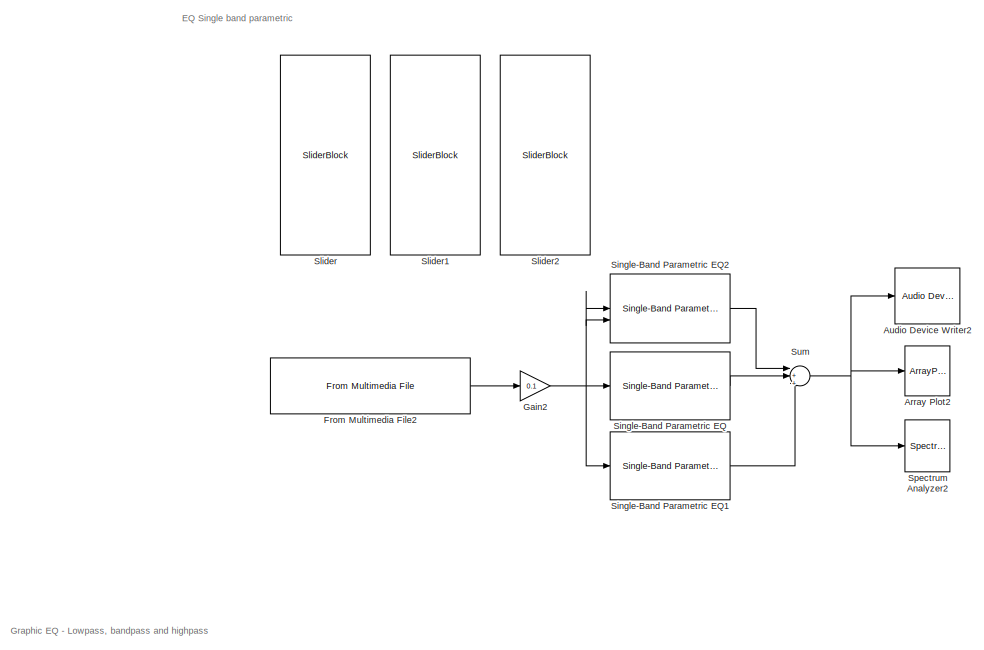
[diagram: root canvas - part 1/5, top right region]
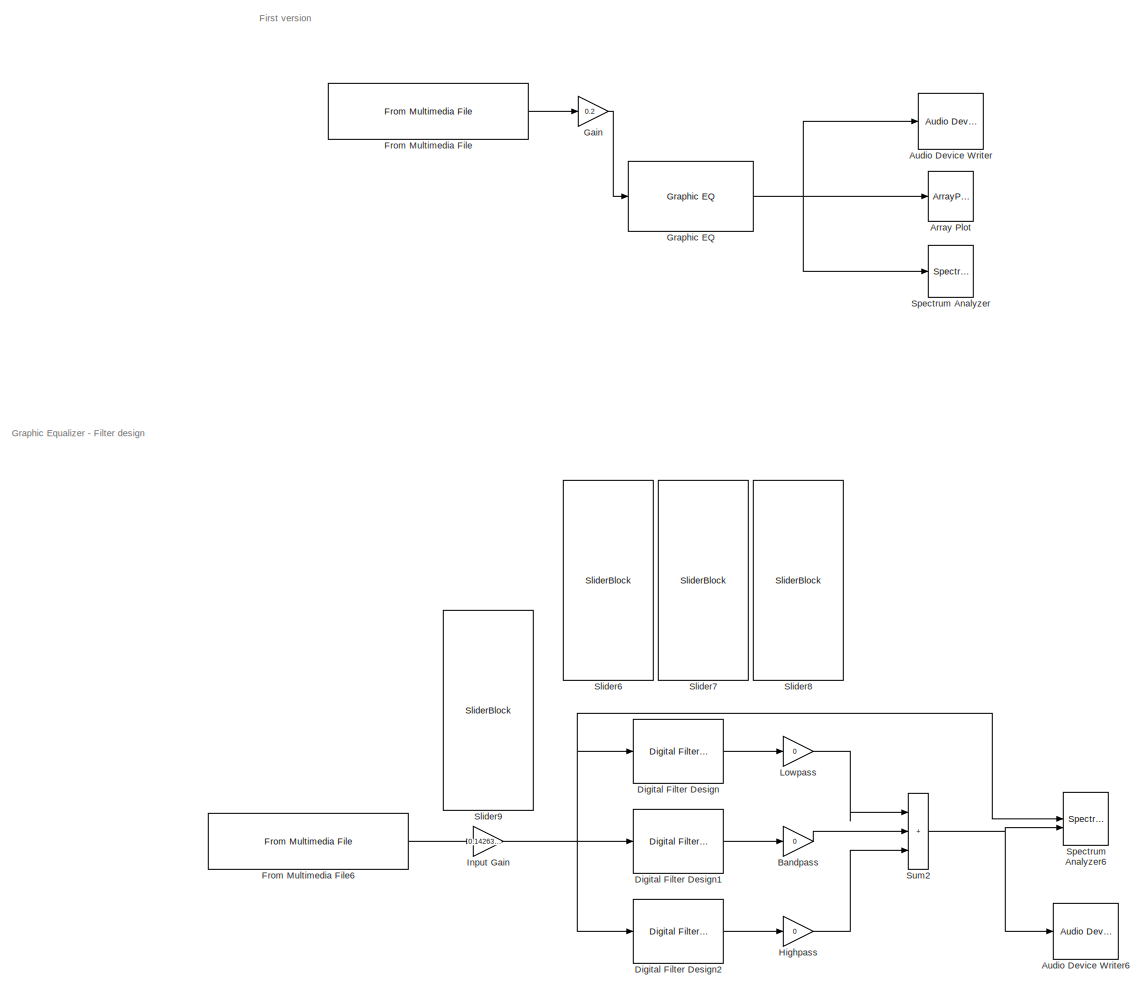
[diagram: root canvas - part 2/5, central region]
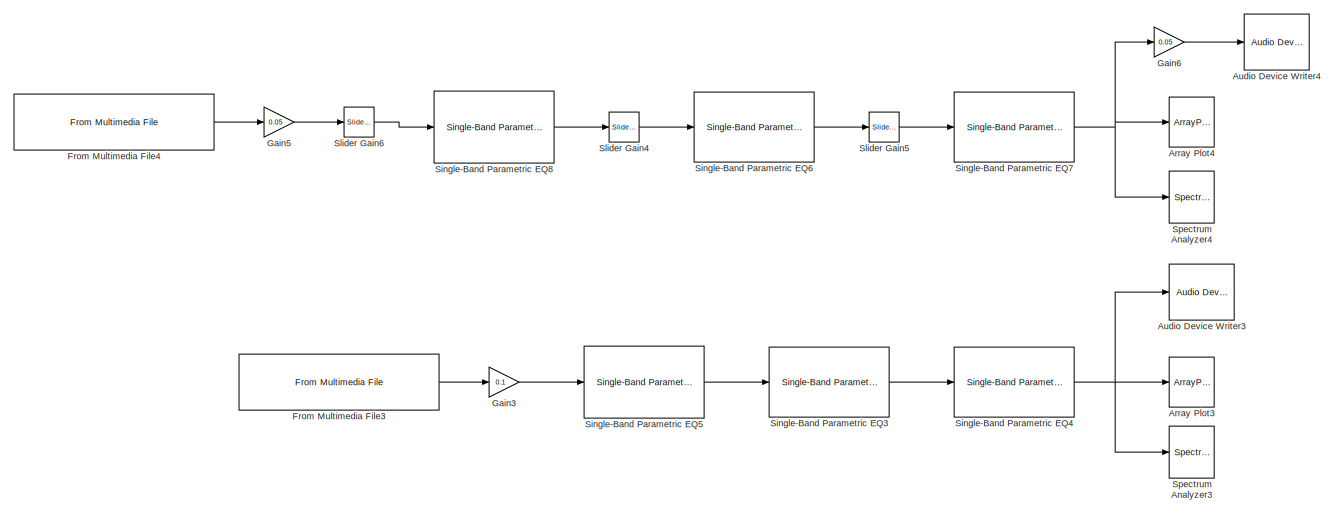
[diagram: root canvas - part 3/5, middle left region]
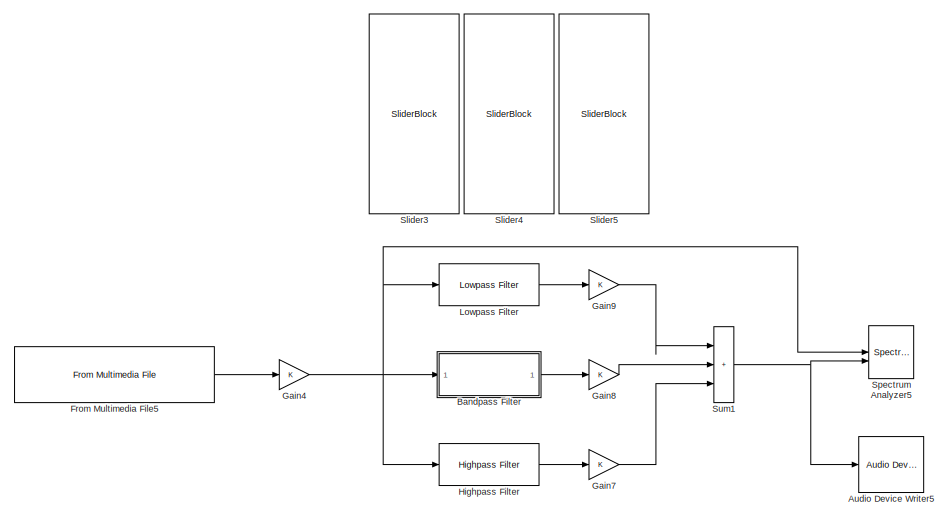
[diagram: root canvas - part 4/5, middle right region]
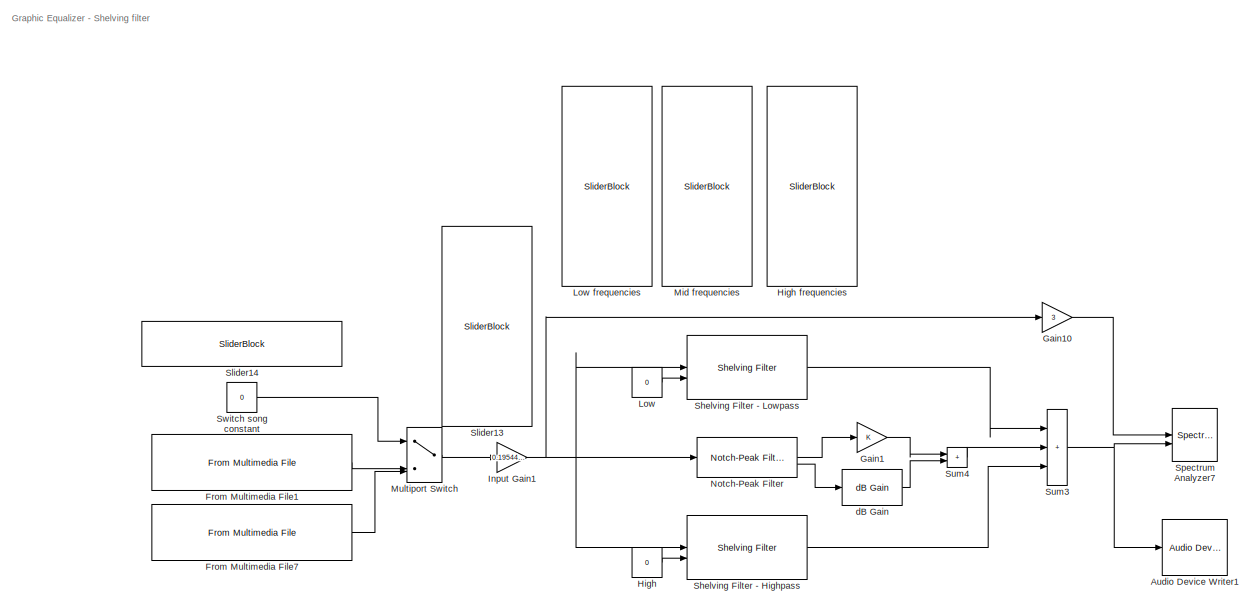
[diagram: root canvas - part 5/5, bottom right region]
MODEL slx_340e7afe3db8
KIND model
CONFIG AbsTol = auto
CONFIG EnableMultiTasking = off
CONFIG FixedStep = auto
CONFIG MaxStep = auto
CONFIG MinStep = auto
CONFIG RelTol = 1e-3
CONFIG SampleTimeConstraint = Unconstrained
CONFIG SolverName = FixedStepDiscrete
CONFIG StartTime = 0.0
CONFIG StopTime = inf
BLOCK [ArrayPlot] Array Plot
  Commented = on
  GraphicalSettings = {"Style":{"BackgroundColor":[0.1568627450980392,0.1568627450980392,0.1568627450980392],"AxesColor":[0,0,0],"LabelsColor":[0.6862745098039216,0.6862745098039216,0.6862745098039216],"LineStyle":["-","-"],"LineColor":[[1,1,0.06666666666666667],[0.07450980392156863,0.6235294117647059,1]],"LineWidth":[1.5,1.5],"Marker":["o","o"],"FontSize":"small"},"Cursors":{"Enabled":false,"XLocation":[2,8],"YLocatio...<+395ch>  <repeated x4 — deduplicated; at blocks: Array Plot, Array Plot2, Array Plot3, Array Plot4>
  ScopeFrameLocation = window
  ShowLegend = on
  WasSavedAsWebScope = on
  WindowPosition = [1760.000000,42.000000,800.000000,500.000000,]
  YLimits = [-0.1327,0.1293]
BLOCK [ArrayPlot] Array Plot2
  Commented = on
  ScopeFrameLocation = window
  ShowLegend = on
  WasSavedAsWebScope = on
  WindowPosition = [1657.000000,112.000000,800.000000,500.000000,]
  YLimits = [-0.3932,0.3437]
BLOCK [ArrayPlot] Array Plot3
  Commented = on
  ScopeFrameLocation = window
  ShowLegend = on
  WasSavedAsWebScope = on
  WindowPosition = [1657.000000,112.000000,800.000000,500.000000,]
  YLimits = [-0.0682,0.0646]
BLOCK [ArrayPlot] Array Plot4
  Commented = on
  ScopeFrameLocation = window
  ShowLegend = on
  WasSavedAsWebScope = on
  WindowPosition = [1657.000000,112.000000,800.000000,500.000000,]
  YLimits = [-1.0204,0.9782]
BLOCK [Reference] Audio Device Writer  REF=dspsnks4/Audio Device
Writer
  Commented = on
  SourceBlock = dspsnks4/Audio Device\nWriter
  SourceType = Audio Device Writer
BLOCK [Reference] Audio Device Writer1  REF=dspsnks4/Audio Device
Writer
  SourceBlock = dspsnks4/Audio Device\nWriter
  SourceType = Audio Device Writer
BLOCK [Reference] Audio Device Writer2  REF=dspsnks4/Audio Device
Writer
  Commented = on
  SourceBlock = dspsnks4/Audio Device\nWriter
  SourceType = Audio Device Writer
BLOCK [Reference] Audio Device Writer3  REF=dspsnks4/Audio Device
Writer
  Commented = on
  SourceBlock = dspsnks4/Audio Device\nWriter
  SourceType = Audio Device Writer
BLOCK [Reference] Audio Device Writer4  REF=dspsnks4/Audio Device
Writer
  Commented = on
  SourceBlock = dspsnks4/Audio Device\nWriter
  SourceType = Audio Device Writer
BLOCK [Reference] Audio Device Writer5  REF=dspsnks4/Audio Device
Writer
  Commented = on
  SourceBlock = dspsnks4/Audio Device\nWriter
  SourceType = Audio Device Writer
BLOCK [Reference] Audio Device Writer6  REF=dspsnks4/Audio Device
Writer
  Commented = on
  SourceBlock = dspsnks4/Audio Device\nWriter
  SourceType = Audio Device Writer
BLOCK [Gain] Bandpass
  Commented = on
  Gain = 0
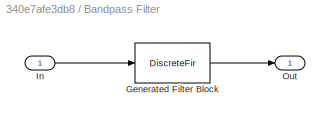
BLOCK [SubSystem] Bandpass Filter
  Commented = on
  CopyFcn = fdesignblkfcn(gcbh, {'CopyFcn'});
  DialogController = fdesignblkfcn
  InitFcn = fdesignblkfcn(gcbh, {'InitFcn'});
  UserDataPersistent = on
BLOCK [DiscreteFir] Bandpass Filter/Generated Filter Block
  Coefficients = [-0.191129939643672114 -0.04182100165159746 -0.0324519768568180614 -0.0150380352860095112 0.00653823963646311609 0.026896052555044115 0.040494078194709085 0.0431305328870113802 0.0331784454415686922 0.0121749667915446395 -0.0152466702751226906 -0.0424978780273151599 -0.0623837933939399847 -0.0692732368320401609 -0.0604779206578360193 -0.0371922014776995824 -0.00458597343800470035 0.029430551994628...<+1847ch>
  InputPortMap = u0
  InputProcessing = Columns as channels (frame based)
  OutputPortMap = o0
  Tag = BlockMethodSubSystem
BLOCK [Inport] Bandpass Filter/In
BLOCK [Outport] Bandpass Filter/Out
  VectorParamsAs1DForOutWhenUnconnected = off
BLOCK [Reference] Digital Filter Design  REF=dsparch4/Digital
Filter Design
  Commented = on
  SourceBlock = dsparch4/Digital\nFilter Design
  SourceType = Digital Filter Design
  UserDataPersistent = on
BLOCK [Reference] Digital Filter Design1  REF=dsparch4/Digital
Filter Design
  Commented = on
  SourceBlock = dsparch4/Digital\nFilter Design
  SourceType = Digital Filter Design
  UserDataPersistent = on
BLOCK [Reference] Digital Filter Design2  REF=dsparch4/Digital
Filter Design
  Commented = on
  SourceBlock = dsparch4/Digital\nFilter Design
  SourceType = Digital Filter Design
  UserDataPersistent = on
BLOCK [Reference] From Multimedia File  REF=dspvision/From Multimedia File
  Commented = on
  SourceBlock = dspvision/From Multimedia File
  SourceType = From Multimedia File
BLOCK [Reference] From Multimedia File1  REF=dspvision/From Multimedia File
  SourceBlock = dspvision/From Multimedia File
  SourceType = From Multimedia File
BLOCK [Reference] From Multimedia File2  REF=dspvision/From Multimedia File
  Commented = on
  SourceBlock = dspvision/From Multimedia File
  SourceType = From Multimedia File
BLOCK [Reference] From Multimedia File3  REF=dspvision/From Multimedia File
  Commented = on
  SourceBlock = dspvision/From Multimedia File
  SourceType = From Multimedia File
BLOCK [Reference] From Multimedia File4  REF=dspvision/From Multimedia File
  Commented = on
  SourceBlock = dspvision/From Multimedia File
  SourceType = From Multimedia File
BLOCK [Reference] From Multimedia File5  REF=dspvision/From Multimedia File
  Commented = on
  SourceBlock = dspvision/From Multimedia File
  SourceType = From Multimedia File
BLOCK [Reference] From Multimedia File6  REF=dspvision/From Multimedia File
  Commented = on
  SourceBlock = dspvision/From Multimedia File
  SourceType = From Multimedia File
BLOCK [Reference] From Multimedia File7  REF=dspvision/From Multimedia File
  SourceBlock = dspvision/From Multimedia File
  SourceType = From Multimedia File
BLOCK [Gain] Gain
  Commented = on
  Gain = 0.2
BLOCK [Gain] Gain1
BLOCK [Gain] Gain10
  Gain = 3
BLOCK [Gain] Gain2
  Commented = on
  Gain = 0.1
BLOCK [Gain] Gain3
  Commented = on
  Gain = 0.1
BLOCK [Gain] Gain4
  Commented = on
BLOCK [Gain] Gain5
  Commented = on
  Gain = 0.05
BLOCK [Gain] Gain6
  Commented = on
  Gain = 0.05
BLOCK [Gain] Gain7
  Commented = on
BLOCK [Gain] Gain8
  Commented = on
BLOCK [Gain] Gain9
  Commented = on
BLOCK [Reference] Graphic EQ  REF=audiofilters/Graphic EQ
  Commented = on
  SourceBlock = audiofilters/Graphic EQ
  SourceType = audio.simulink.GraphicEQ
BLOCK [Constant] High
  Value = 0
BLOCK [SliderBlock] High frequencies
  ScaleMax = 30
  ScaleMin = -30
BLOCK [Gain] Highpass
  Commented = on
  Gain = 0
BLOCK [Reference] Highpass Filter  REF=dspfdesign/Highpass Filter
  Commented = on
  SourceBlock = dspfdesign/Highpass Filter
  SourceType = dsp.simulink.HighpassFilter
BLOCK [Gain] Input Gain
  Commented = on
  Gain = 0.1426371087518565
BLOCK [Gain] Input Gain1
  Gain = 0.1954452940205732
BLOCK [Constant] Low
  Value = 0
BLOCK [SliderBlock] Low frequencies
  ScaleMax = 30
  ScaleMin = -30
BLOCK [Gain] Lowpass
  Commented = on
  Gain = 0
BLOCK [Reference] Lowpass Filter  REF=dspfdesign/Lowpass Filter
  Commented = on
  SourceBlock = dspfdesign/Lowpass Filter
  SourceType = dsp.simulink.LowpassFilter
BLOCK [SliderBlock] Mid frequencies
  ScaleMax = 30
  ScaleMin = -30
BLOCK [MultiPortSwitch] Multiport Switch
  DataPortOrder = Zero-based contiguous
  InputSameDT = off
  SaturateOnIntegerOverflow = off
  zeroidx = on
BLOCK [Reference] Notch-Peak Filter  REF=dspfdesign/Notch-Peak Filter
  SourceBlock = dspfdesign/Notch-Peak Filter
  SourceType = dsp.simulink.NotchPeakFilter
BLOCK [Reference] Shelving Filter - Highpass  REF=audiofilters/Shelving Filter
  SourceBlock = audiofilters/Shelving Filter
  SourceType = audio.simulink.ShelvingFilter
BLOCK [Reference] Shelving Filter - Lowpass  REF=audiofilters/Shelving Filter
  SourceBlock = audiofilters/Shelving Filter
  SourceType = audio.simulink.ShelvingFilter
BLOCK [Reference] Single-Band Parametric EQ  REF=audiofilters/Single-Band Parametric EQ
  Commented = on
  SourceBlock = audiofilters/Single-Band Parametric EQ
  SourceType = audio.simulink.ParametricEQ
BLOCK [Reference] Single-Band Parametric EQ1  REF=audiofilters/Single-Band Parametric EQ
  Commented = on
  SourceBlock = audiofilters/Single-Band Parametric EQ
  SourceType = audio.simulink.ParametricEQ
BLOCK [Reference] Single-Band Parametric EQ2  REF=audiofilters/Single-Band Parametric EQ
  Commented = on
  SourceBlock = audiofilters/Single-Band Parametric EQ
  SourceType = audio.simulink.ParametricEQ
BLOCK [Reference] Single-Band Parametric EQ3  REF=audiofilters/Single-Band Parametric EQ
  Commented = on
  SourceBlock = audiofilters/Single-Band Parametric EQ
  SourceType = audio.simulink.ParametricEQ
BLOCK [Reference] Single-Band Parametric EQ4  REF=audiofilters/Single-Band Parametric EQ
  Commented = on
  SourceBlock = audiofilters/Single-Band Parametric EQ
  SourceType = audio.simulink.ParametricEQ
BLOCK [Reference] Single-Band Parametric EQ5  REF=audiofilters/Single-Band Parametric EQ
  Commented = on
  SourceBlock = audiofilters/Single-Band Parametric EQ
  SourceType = audio.simulink.ParametricEQ
BLOCK [Reference] Single-Band Parametric EQ6  REF=audiofilters/Single-Band Parametric EQ
  Commented = on
  SourceBlock = audiofilters/Single-Band Parametric EQ
  SourceType = audio.simulink.ParametricEQ
BLOCK [Reference] Single-Band Parametric EQ7  REF=audiofilters/Single-Band Parametric EQ
  Commented = on
  SourceBlock = audiofilters/Single-Band Parametric EQ
  SourceType = audio.simulink.ParametricEQ
BLOCK [Reference] Single-Band Parametric EQ8  REF=audiofilters/Single-Band Parametric EQ
  Commented = on
  SourceBlock = audiofilters/Single-Band Parametric EQ
  SourceType = audio.simulink.ParametricEQ
BLOCK [SliderBlock] Slider
  Commented = on
  NameLocation = left
BLOCK [Reference] Slider Gain4  REF=simulink/Math
Operations/Slider
Gain
  Commented = on
  SourceBlock = simulink/Math\nOperations/Slider\nGain
  SourceType = Slider Gain
BLOCK [Reference] Slider Gain5  REF=simulink/Math
Operations/Slider
Gain
  Commented = on
  SourceBlock = simulink/Math\nOperations/Slider\nGain
  SourceType = Slider Gain
BLOCK [Reference] Slider Gain6  REF=simulink/Math
Operations/Slider
Gain
  Commented = on
  SourceBlock = simulink/Math\nOperations/Slider\nGain
  SourceType = Slider Gain
BLOCK [SliderBlock] Slider1
  Commented = on
  NameLocation = left
BLOCK [SliderBlock] Slider13
  NameLocation = right
  ScaleMax = 1
  TickInterval = 0.1
BLOCK [SliderBlock] Slider14
  ScaleMax = 2
  TickInterval = 1
BLOCK [SliderBlock] Slider2
  Commented = on
  NameLocation = left
BLOCK [SliderBlock] Slider3
  Commented = on
  NameLocation = left
  ScaleMax = 12
  ScaleMin = -12
BLOCK [SliderBlock] Slider4
  Commented = on
  NameLocation = left
  ScaleMax = 12
  ScaleMin = -12
BLOCK [SliderBlock] Slider5
  Commented = on
  NameLocation = left
  ScaleMax = 12
  ScaleMin = -12
BLOCK [SliderBlock] Slider6
  Commented = on
  NameLocation = left
  ScaleMax = 12
BLOCK [SliderBlock] Slider7
  Commented = on
  NameLocation = left
  ScaleMax = 12
BLOCK [SliderBlock] Slider8
  Commented = on
  NameLocation = left
  ScaleMax = 12
BLOCK [SliderBlock] Slider9
  Commented = on
  NameLocation = right
  ScaleMax = 1
  TickInterval = 0.1
BLOCK [SpectrumAnalyzer] Spectrum Analyzer
  Commented = on
  ScopeSpecificationString = spbscopes.SpectrumAnalyzerBlockCfg('CurrentConfiguration', extmgr.ConfigurationSet(extmgr.Configuration('Core','General UI',true),extmgr.Configuration('Core','Source UI',true),extmgr.Configuration('Sources','WiredSimulink',true),extmgr.Configuration('Visuals','Spectrum',true,'AxesProperties',struct('Color',{[0 0 0],[0 0 0]},'XColor',{[0.686274509803922 0.686274509803922 0.686274509803922],[0.68627...<+2170ch>
BLOCK [SpectrumAnalyzer] Spectrum Analyzer2
  Commented = on
  ScopeSpecificationString = spbscopes.SpectrumAnalyzerBlockCfg('CurrentConfiguration', extmgr.ConfigurationSet(extmgr.Configuration('Core','General UI',true),extmgr.Configuration('Core','Source UI',true),extmgr.Configuration('Sources','WiredSimulink',true),extmgr.Configuration('Visuals','Spectrum',true,'AxesProperties',struct('Color',{[0 0 0],[0 0 0]},'XColor',{[0.686274509803922 0.686274509803922 0.686274509803922],[0.68627...<+2171ch>
BLOCK [SpectrumAnalyzer] Spectrum Analyzer3
  Commented = on
  ScopeSpecificationString = spbscopes.SpectrumAnalyzerBlockCfg('CurrentConfiguration', extmgr.ConfigurationSet(extmgr.Configuration('Core','General UI',true),extmgr.Configuration('Core','Source UI',true),extmgr.Configuration('Sources','WiredSimulink',true),extmgr.Configuration('Visuals','Spectrum',true,'AxesProperties',struct('Color',{[0 0 0],[0 0 0]},'XColor',{[0.686274509803922 0.686274509803922 0.686274509803922],[0.68627...<+2172ch>
BLOCK [SpectrumAnalyzer] Spectrum Analyzer4
  Commented = on
  ScopeSpecificationString = spbscopes.SpectrumAnalyzerBlockCfg('CurrentConfiguration', extmgr.ConfigurationSet(extmgr.Configuration('Core','General UI',true),extmgr.Configuration('Core','Source UI',true),extmgr.Configuration('Sources','WiredSimulink',true),extmgr.Configuration('Visuals','Spectrum',true,'AxesProperties',struct('Color',{[0 0 0],[0 0 0]},'XColor',{[0.686274509803922 0.686274509803922 0.686274509803922],[0.68627...<+2171ch>
BLOCK [SpectrumAnalyzer] Spectrum Analyzer5
  Commented = on
  NumInputPorts = 2
  ScopeSpecificationString = spbscopes.SpectrumAnalyzerBlockCfg('CurrentConfiguration', extmgr.ConfigurationSet(extmgr.Configuration('Core','General UI',true),extmgr.Configuration('Core','Source UI',true),extmgr.Configuration('Sources','WiredSimulink',true),extmgr.Configuration('Visuals','Spectrum',true,'AxesProperties',struct('Color',{[0 0 0],[0 0 0]},'XColor',{[0.686274509803922 0.686274509803922 0.686274509803922],[0.68627...<+2492ch>
BLOCK [SpectrumAnalyzer] Spectrum Analyzer6
  Commented = on
  NumInputPorts = 2
  ScopeSpecificationString = spbscopes.SpectrumAnalyzerBlockCfg('CurrentConfiguration', extmgr.ConfigurationSet(extmgr.Configuration('Core','General UI',true),extmgr.Configuration('Core','Source UI',true),extmgr.Configuration('Sources','WiredSimulink',true),extmgr.Configuration('Visuals','Spectrum',true,'AxesProperties',struct('Color',{[0 0 0],[0 0 0]},'XColor',{[0.686274509803922 0.686274509803922 0.686274509803922],[0.68627...<+2519ch>
BLOCK [SpectrumAnalyzer] Spectrum Analyzer7
  NumInputPorts = 2
  ScopeSpecificationString = spbscopes.SpectrumAnalyzerBlockCfg('CurrentConfiguration', extmgr.ConfigurationSet(extmgr.Configuration('Core','General UI',true),extmgr.Configuration('Core','Source UI',true),extmgr.Configuration('Sources','WiredSimulink',true),extmgr.Configuration('Visuals','Spectrum',true,'AxesProperties',struct('Color',{[0 0 0],[0 0 0]},'XColor',{[0.686274509803922 0.686274509803922 0.686274509803922],[0.68627...<+2391ch>
BLOCK [Sum] Sum
  Commented = on
  Inputs = |+++
BLOCK [Sum] Sum1
  Commented = on
  IconShape = rectangular
  Inputs = |+++
BLOCK [Sum] Sum2
  Commented = on
  IconShape = rectangular
  Inputs = |+++
BLOCK [Sum] Sum3
  IconShape = rectangular
  Inputs = |+++
BLOCK [Sum] Sum4
  IconShape = rectangular
  Inputs = |++
BLOCK [Constant] Switch song constant
  Value = 0
BLOCK [Reference] dB Gain  REF=dspmathops/dB Gain
  SourceBlock = dspmathops/dB Gain
  SourceType = dB Gain
ANNOTATION (root): EQ Single band parametric
ANNOTATION (root): First version
ANNOTATION (root): Graphic EQ - Lowpass, bandpass and highpass
ANNOTATION (root): Graphic Equalizer - Filter design
ANNOTATION (root): Graphic Equalizer - Shelving filter
LINE Bandpass Filter:1 -> Gain8:1
LINE Bandpass:1 -> Sum2:2
LINE Digital Filter Design1:1 -> Bandpass:1
LINE Digital Filter Design2:1 -> Highpass:1
LINE Digital Filter Design:1 -> Lowpass:1
LINE From Multimedia File1:1 -> Multiport Switch:3
LINE From Multimedia File2:1 -> Gain2:1
LINE From Multimedia File3:1 -> Gain3:1
LINE From Multimedia File4:1 -> Gain5:1
LINE From Multimedia File5:1 -> Gain4:1
LINE From Multimedia File6:1 -> Input Gain:1
LINE From Multimedia File7:1 -> Multiport Switch:4
LINE From Multimedia File:1 -> Gain:1
LINE Gain10:1 -> Spectrum Analyzer7:1
LINE Gain1:1 -> Sum4:1
NET Gain2:1 -> Single-Band Parametric EQ1:1, Single-Band Parametric EQ2:1, Single-Band Parametric EQ2:2, Single-Band Parametric EQ:1
LINE Gain3:1 -> Single-Band Parametric EQ5:1
NET Gain4:1 -> Bandpass Filter:1, Highpass Filter:1, Lowpass Filter:1, Spectrum Analyzer5:1
LINE Gain5:1 -> Slider Gain6:1
LINE Gain6:1 -> Audio Device Writer4:1
LINE Gain7:1 -> Sum1:3
LINE Gain8:1 -> Sum1:2
LINE Gain9:1 -> Sum1:1
LINE Gain:1 -> Graphic EQ:1
NET Graphic EQ:1 -> Array Plot:1, Audio Device Writer:1, Spectrum Analyzer:1
LINE High:1 -> Shelving Filter - Highpass:2
LINE Highpass Filter:1 -> Gain7:1
LINE Highpass:1 -> Sum2:3
NET Input Gain1:1 -> Gain10:1, Notch-Peak Filter:1, Shelving Filter - Highpass:1, Shelving Filter - Lowpass:1
NET Input Gain:1 -> Digital Filter Design1:1, Digital Filter Design2:1, Digital Filter Design:1, Spectrum Analyzer6:1
LINE Low:1 -> Shelving Filter - Lowpass:2
LINE Lowpass Filter:1 -> Gain9:1
LINE Lowpass:1 -> Sum2:1
LINE Multiport Switch:1 -> Input Gain1:1
LINE Notch-Peak Filter:1 -> Gain1:1
LINE Notch-Peak Filter:2 -> dB Gain:1
LINE Shelving Filter - Highpass:1 -> Sum3:3
LINE Shelving Filter - Lowpass:1 -> Sum3:1
LINE Single-Band Parametric EQ1:1 -> Sum:3
LINE Single-Band Parametric EQ2:1 -> Sum:1
LINE Single-Band Parametric EQ3:1 -> Single-Band Parametric EQ4:1
NET Single-Band Parametric EQ4:1 -> Array Plot3:1, Audio Device Writer3:1, Spectrum Analyzer3:1
LINE Single-Band Parametric EQ5:1 -> Single-Band Parametric EQ3:1
LINE Single-Band Parametric EQ6:1 -> Slider Gain5:1
NET Single-Band Parametric EQ7:1 -> Array Plot4:1, Gain6:1, Spectrum Analyzer4:1
LINE Single-Band Parametric EQ8:1 -> Slider Gain4:1
LINE Single-Band Parametric EQ:1 -> Sum:2
LINE Slider Gain4:1 -> Single-Band Parametric EQ6:1
LINE Slider Gain5:1 -> Single-Band Parametric EQ7:1
LINE Slider Gain6:1 -> Single-Band Parametric EQ8:1
NET Sum1:1 -> Audio Device Writer5:1, Spectrum Analyzer5:2
NET Sum2:1 -> Audio Device Writer6:1, Spectrum Analyzer6:2
NET Sum3:1 -> Audio Device Writer1:1, Spectrum Analyzer7:2
LINE Sum4:1 -> Sum3:2
NET Sum:1 -> Array Plot2:1, Audio Device Writer2:1, Spectrum Analyzer2:1
LINE Switch song constant:1 -> Multiport Switch:1
LINE dB Gain:1 -> Sum4:2
note: NET lines group one-source signal fan-out (src -> all destinations, sorted); 1:1 wires keep LINE
